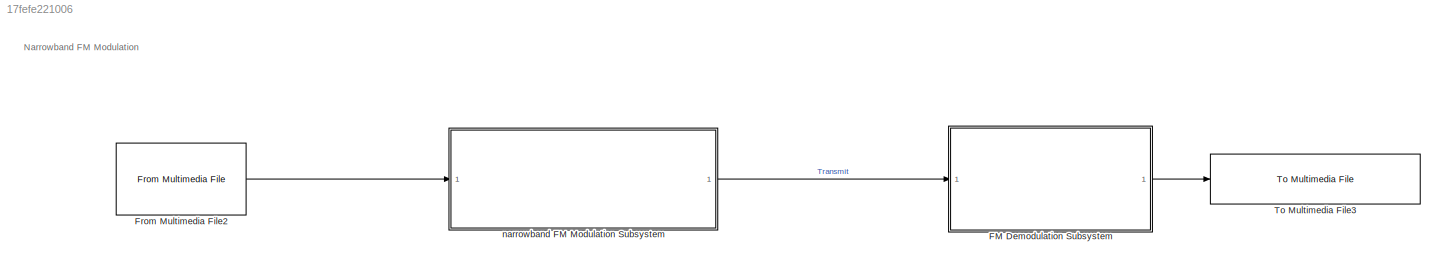
MODEL slx_17fefe221006
KIND model
CONFIG AbsTol = auto
CONFIG EnableMultiTasking = off
CONFIG FixedStep = auto
CONFIG MaxStep = auto
CONFIG MinStep = auto
CONFIG RelTol = 1e-3
CONFIG SampleTimeConstraint = Unconstrained
CONFIG SolverName = VariableStepAuto
CONFIG StartTime = 0.0
CONFIG StopTime = 10.0
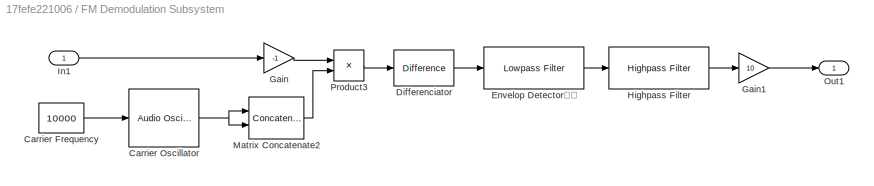
BLOCK [SubSystem] FM Demodulation Subsystem
  Ports = [1, 1]
  RequestExecContextInheritance = off
BLOCK [Constant] FM Demodulation Subsystem/Carrier Frequency
  Value = 10000
BLOCK [Reference] FM Demodulation Subsystem/Carrier Oscillator  REF=audiosources/Audio Oscillator
  Ports = [1, 1]
  SourceBlock = audiosources/Audio Oscillator
  SourceProductBaseCode = AU
  SourceType = audio.simulink.AudioOscillator
BLOCK [Reference] FM Demodulation Subsystem/Differenciator  REF=simulink/Discrete/Difference
  Ports = [1, 1]
  SourceBlock = simulink/Discrete/Difference
  SourceProductBaseCode = SL
  SourceType = Difference
BLOCK [Reference] FM Demodulation Subsystem/Envelop Detector역할  REF=dspfdesign/Lowpass Filter
  Ports = [1, 1]
  SourceBlock = dspfdesign/Lowpass Filter
  SourceProductBaseCode = DS
  SourceType = dsp.LowpassFilter
BLOCK [Gain] FM Demodulation Subsystem/Gain
  Gain = -1
BLOCK [Gain] FM Demodulation Subsystem/Gain1
  Gain = 10
BLOCK [Reference] FM Demodulation Subsystem/Highpass Filter  REF=dspfdesign/Highpass Filter
  Ports = [1, 1]
  SourceBlock = dspfdesign/Highpass Filter
  SourceProductBaseCode = DS
  SourceType = dsp.HighpassFilter
BLOCK [Inport] FM Demodulation Subsystem/In1
BLOCK [Concatenate] FM Demodulation Subsystem/Matrix Concatenate2
  ConcatenateDimension = 2
  Mode = Multidimensional array
  Ports = [2, 1]
BLOCK [Outport] FM Demodulation Subsystem/Out1
BLOCK [Product] FM Demodulation Subsystem/Product3
  Ports = [2, 1]
BLOCK [Reference] From Multimedia File2  REF=dspvision/From Multimedia File
  Ports = [0, 1]
  SourceBlock = dspvision/From Multimedia File
  SourceProductBaseCode = DS,HW,VP
  SourceType = From Multimedia File
BLOCK [Reference] To Multimedia File3  REF=dspvision/To Multimedia File
  Ports = [1]
  SourceBlock = dspvision/To Multimedia File
  SourceProductBaseCode = DS,HW,VP
  SourceType = To Multimedia File
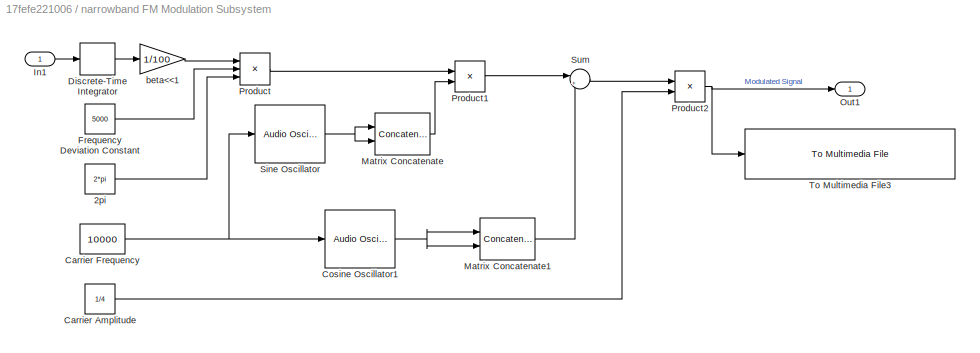
BLOCK [SubSystem] narrowband FM Modulation Subsystem
  Ports = [1, 1]
  RequestExecContextInheritance = off
BLOCK [Constant] narrowband FM Modulation Subsystem/2pi
  Value = 2*pi
BLOCK [Constant] narrowband FM Modulation Subsystem/Carrier Amplitude
  Value = 1/4
BLOCK [Constant] narrowband FM Modulation Subsystem/Carrier Frequency
  Value = 10000
BLOCK [Reference] narrowband FM Modulation Subsystem/Cosine Oscillator1  REF=audiosources/Audio Oscillator
  Ports = [1, 1]
  SourceBlock = audiosources/Audio Oscillator
  SourceProductBaseCode = AU
  SourceType = audio.simulink.AudioOscillator
BLOCK [DiscreteIntegrator] narrowband FM Modulation Subsystem/Discrete-Time Integrator
  ICPrevOutput = DiscIntNeverNeededParam
  ICPrevScaledInput = DiscIntNeverNeededParam
  InitialConditionSetting = Auto
  Ports = [1, 1]
  SampleTime = -1
BLOCK [Constant] narrowband FM Modulation Subsystem/Frequency Deviation Constant
  Value = 5000
BLOCK [Inport] narrowband FM Modulation Subsystem/In1
BLOCK [Concatenate] narrowband FM Modulation Subsystem/Matrix Concatenate
  ConcatenateDimension = 2
  Mode = Multidimensional array
  Ports = [2, 1]
BLOCK [Concatenate] narrowband FM Modulation Subsystem/Matrix Concatenate1
  ConcatenateDimension = 2
  Mode = Multidimensional array
  Ports = [2, 1]
BLOCK [Outport] narrowband FM Modulation Subsystem/Out1
BLOCK [Product] narrowband FM Modulation Subsystem/Product
  Inputs = 3
  Ports = [3, 1]
BLOCK [Product] narrowband FM Modulation Subsystem/Product1
  Ports = [2, 1]
BLOCK [Product] narrowband FM Modulation Subsystem/Product2
  Ports = [2, 1]
BLOCK [Reference] narrowband FM Modulation Subsystem/Sine Oscillator  REF=audiosources/Audio Oscillator
  Ports = [1, 1]
  SourceBlock = audiosources/Audio Oscillator
  SourceProductBaseCode = AU
  SourceType = audio.simulink.AudioOscillator
BLOCK [Sum] narrowband FM Modulation Subsystem/Sum
  Inputs = |++
  Ports = [2, 1]
BLOCK [Reference] narrowband FM Modulation Subsystem/To Multimedia File3  REF=dspvision/To Multimedia File
  Ports = [1]
  SourceBlock = dspvision/To Multimedia File
  SourceProductBaseCode = DS,HW,VP
  SourceType = To Multimedia File
BLOCK [Gain] narrowband FM Modulation Subsystem/beta<<1
  Gain = 1/100
ANNOTATION (root): Narrowband FM Modulation
LINE FM Demodulation Subsystem/Carrier Frequency:1 -> FM Demodulation Subsystem/Carrier Oscillator:1
NET FM Demodulation Subsystem/Carrier Oscillator:1 -> FM Demodulation Subsystem/Matrix Concatenate2:1, FM Demodulation Subsystem/Matrix Concatenate2:2
LINE FM Demodulation Subsystem/Differenciator:1 -> FM Demodulation Subsystem/Envelop Detector역할:1
LINE FM Demodulation Subsystem/Envelop Detector역할:1 -> FM Demodulation Subsystem/Highpass Filter:1
LINE FM Demodulation Subsystem/Gain1:1 -> FM Demodulation Subsystem/Out1:1
LINE FM Demodulation Subsystem/Gain:1 -> FM Demodulation Subsystem/Product3:1
LINE FM Demodulation Subsystem/Highpass Filter:1 -> FM Demodulation Subsystem/Gain1:1
LINE FM Demodulation Subsystem/In1:1 -> FM Demodulation Subsystem/Gain:1
LINE FM Demodulation Subsystem/Matrix Concatenate2:1 -> FM Demodulation Subsystem/Product3:2
LINE FM Demodulation Subsystem/Product3:1 -> FM Demodulation Subsystem/Differenciator:1
LINE FM Demodulation Subsystem:1 -> To Multimedia File3:1
LINE From Multimedia File2:1 -> narrowband FM Modulation Subsystem:1
LINE narrowband FM Modulation Subsystem/2pi:1 -> narrowband FM Modulation Subsystem/Product:3
LINE narrowband FM Modulation Subsystem/Carrier Amplitude:1 -> narrowband FM Modulation Subsystem/Product2:2
NET narrowband FM Modulation Subsystem/Carrier Frequency:1 -> narrowband FM Modulation Subsystem/Cosine Oscillator1:1, narrowband FM Modulation Subsystem/Sine Oscillator:1
NET narrowband FM Modulation Subsystem/Cosine Oscillator1:1 -> narrowband FM Modulation Subsystem/Matrix Concatenate1:1, narrowband FM Modulation Subsystem/Matrix Concatenate1:2
LINE narrowband FM Modulation Subsystem/Discrete-Time Integrator:1 -> narrowband FM Modulation Subsystem/beta<<1:1
LINE narrowband FM Modulation Subsystem/Frequency Deviation Constant:1 -> narrowband FM Modulation Subsystem/Product:2
LINE narrowband FM Modulation Subsystem/In1:1 -> narrowband FM Modulation Subsystem/Discrete-Time Integrator:1
LINE narrowband FM Modulation Subsystem/Matrix Concatenate1:1 -> narrowband FM Modulation Subsystem/Sum:2
LINE narrowband FM Modulation Subsystem/Matrix Concatenate:1 -> narrowband FM Modulation Subsystem/Product1:2
LINE narrowband FM Modulation Subsystem/Product1:1 -> narrowband FM Modulation Subsystem/Sum:1
NET narrowband FM Modulation Subsystem/Product2:1 -> narrowband FM Modulation Subsystem/Out1:1, narrowband FM Modulation Subsystem/To Multimedia File3:1
LINE narrowband FM Modulation Subsystem/Product:1 -> narrowband FM Modulation Subsystem/Product1:1
NET narrowband FM Modulation Subsystem/Sine Oscillator:1 -> narrowband FM Modulation Subsystem/Matrix Concatenate:1, narrowband FM Modulation Subsystem/Matrix Concatenate:2
LINE narrowband FM Modulation Subsystem/Sum:1 -> narrowband FM Modulation Subsystem/Product2:1
LINE narrowband FM Modulation Subsystem/beta<<1:1 -> narrowband FM Modulation Subsystem/Product:1
LINE narrowband FM Modulation Subsystem:1 -> FM Demodulation Subsystem:1
note: NET lines group one-source signal fan-out (src -> all destinations, sorted); 1:1 wires keep LINE
